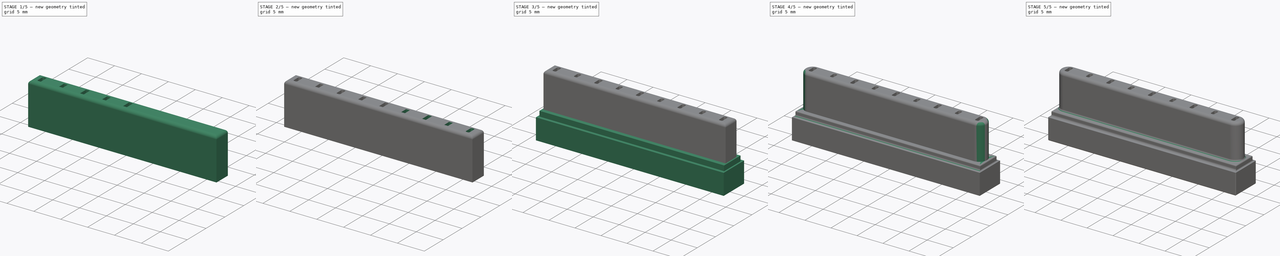
[diagram: build sequence overview — one tinted view per stage of 5, left to right]
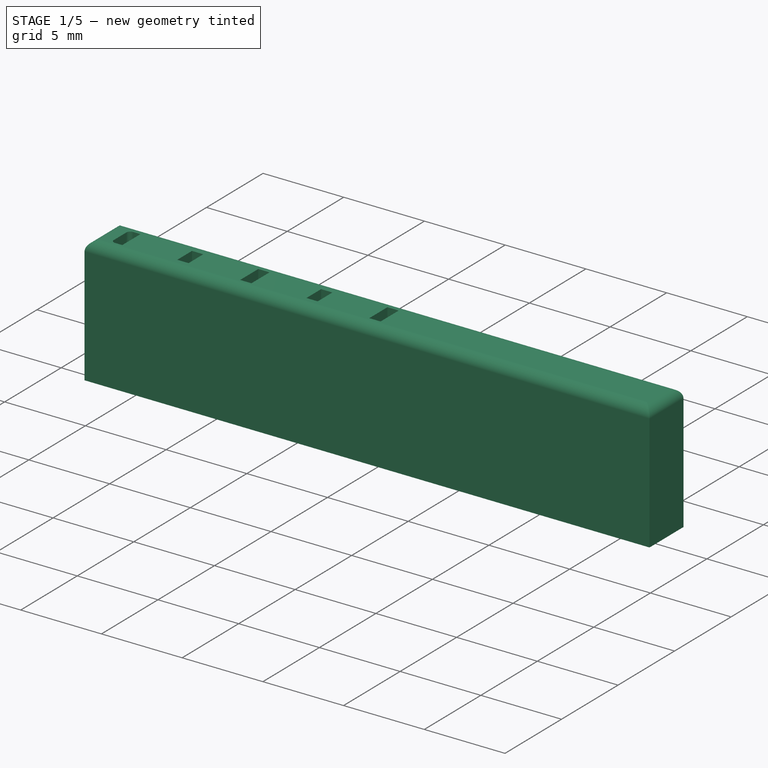
[diagram: stage 1 of 5 — iso view after this stage's code; geometry added in this stage tinted green]
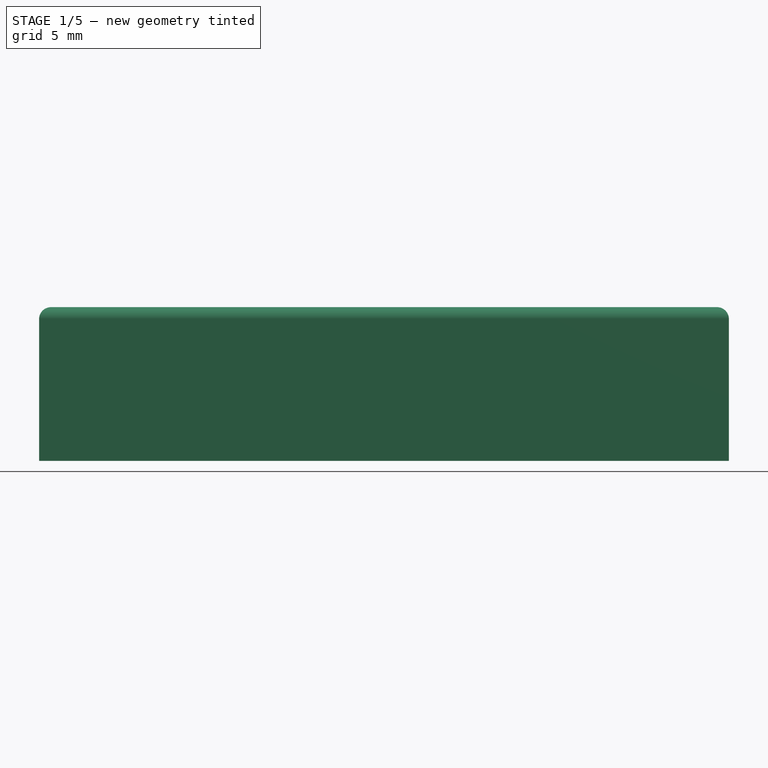
[diagram: stage 1 of 5 — front view after this stage's code; geometry added in this stage tinted green]
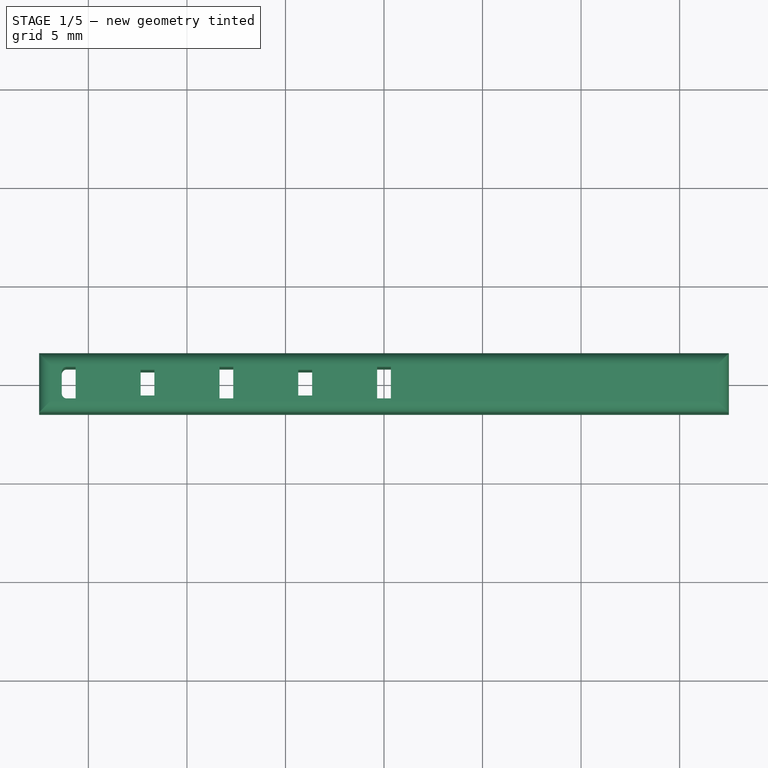
[diagram: stage 1 of 5 — top view after this stage's code; geometry added in this stage tinted green]
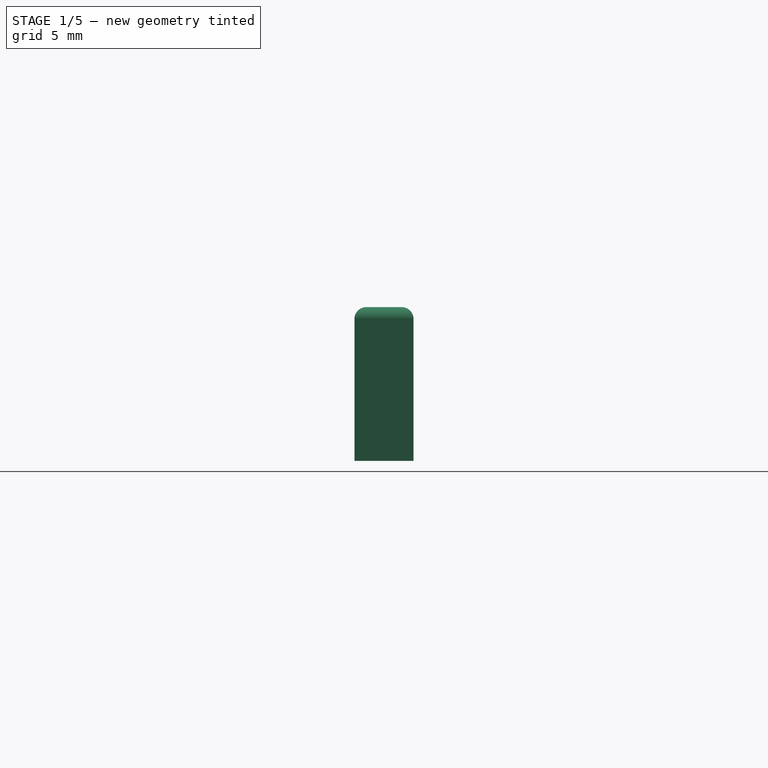
[diagram: stage 1 of 5 — right view after this stage's code; geometry added in this stage tinted green]
FCSTD DOCUMENT  (FreeCAD 0.18R16146 (Git))
Label: Joystick_LED
License: All rights reserved
LicenseURL: http://en.wikipedia.org/wiki/All_rights_reserved
objects: PartDesign::Fillet×9, Sketcher::SketchObject×4, PartDesign::Pad×3, PartDesign::Chamfer×2, PartDesign::Plane×1, PartDesign::Pocket×1, PartDesign::Mirrored×1, PartDesign::Body×1
note: 26 computed .brp shape members not serialized (recipe doc carries the construction recipe); baked Part::Feature solids carry a one-line shape summary decoded from their .brp

FEATURE [Sketcher::SketchObject] Sketch001
  MapMode = 5
  Placement = pos=(0,0,0) rot=(1,0,0;3.14159rad)
  sketch-geometry (8):
    g0: LineSegment StartX=-17.5 StartY=1.5 StartZ=0 EndX=17.5 EndY=1.5 EndZ=0
    g1: LineSegment [constr] StartX=17.5 StartY=1.5 StartZ=0 EndX=17.5 EndY=0 EndZ=0
    g2: LineSegment [constr] StartX=17.5 StartY=0 StartZ=0 EndX=17.5 EndY=-1.5 EndZ=0
    g3: LineSegment StartX=17.5 StartY=-1.5 StartZ=0 EndX=-17.5 EndY=-1.5 EndZ=0
    g4: LineSegment [constr] StartX=-17.5 StartY=-1.5 StartZ=0 EndX=-17.5 EndY=0 EndZ=0
    g5: LineSegment [constr] StartX=-17.5 StartY=0 StartZ=0 EndX=-17.5 EndY=1.5 EndZ=0
    g6: LineSegment StartX=-17.5 StartY=1.5 StartZ=0 EndX=-17.5 EndY=-1.5 EndZ=0
    g7: LineSegment StartX=17.5 StartY=1.5 StartZ=0 EndX=17.5 EndY=-1.5 EndZ=0
  constraints (21):
    c: Horizontal(g0)
    c: Coincident(g0,g1)
    c: Coincident(g1,g2)
    c: Coincident(g2,g3)
    c: Horizontal(g3)
    c: Coincident(g3,g4)
    c: Coincident(g4,g5)
    c: Coincident(g5,g0)
    c: Vertical(g5)
    c: Vertical(g2)
    c: Vertical(g1)
    c: Equal(g2,g1)
    c: Equal(g5,g4)
    c: Symmetric(g0,g2,g-1)
    c: DistanceY(g2,g0) = 3
    c: DistanceX(g0,g0) = 35
    c: Vertical(g4)
    c: Coincident(g6,g0)
    c: Coincident(g6,g3)
    c: Coincident(g7,g0)
    c: Coincident(g7,g3)
FEATURE [PartDesign::Plane] DatumPlane  label="PlatineOK"
  Length = 40.2915
  MapMode = 2
  Placement = pos=(0,0,-10) rot=(0,0,1;0rad)
  ResizeMode = 0
  Width = 25.2915
FEATURE [PartDesign::Pad] Pad  label="Oberteil"
  Length = 6
  Length2 = 1.8
  Placement = pos=(0,0,0) rot=(1,0,0;3.14159rad)
  Profile = -> Sketch001
  Type = 4
FEATURE [PartDesign::Fillet] Fillet
  Base = -> Pad [Edge9,Edge6,Edge3,Edge11]
  BaseFeature = -> Pad
  Placement = pos=(0,0,0) rot=(1,0,0;3.14159rad)
  Radius = 0.6
FEATURE [Sketcher::SketchObject] Sketch
  MapMode = 5
  Placement = pos=(0,-2e-16,1.8) rot=(0,0,1;0rad)
  Support = -> [Fillet]
  sketch-geometry (40):
    g0: LineSegment StartX=-0.35 StartY=0.8 StartZ=0 EndX=0.35 EndY=0.8 EndZ=0
    g1: LineSegment StartX=0.35 StartY=0.8 StartZ=0 EndX=0.35 EndY=-0.8 EndZ=0
    g2: LineSegment StartX=0.35 StartY=-0.8 StartZ=0 EndX=-0.35 EndY=-0.8 EndZ=0
    g3: LineSegment StartX=-0.35 StartY=-0.8 StartZ=0 EndX=-0.35 EndY=0.8 EndZ=0
    g4: LineSegment StartX=-8.35 StartY=0.8 StartZ=0 EndX=-7.65 EndY=0.8 EndZ=0
    g5: LineSegment StartX=-7.65 StartY=0.8 StartZ=0 EndX=-7.65 EndY=-0.8 EndZ=0
    g6: LineSegment StartX=-7.65 StartY=-0.8 StartZ=0 EndX=-8.35 EndY=-0.8 EndZ=0
    g7: LineSegment StartX=-8.35 StartY=-0.8 StartZ=0 EndX=-8.35 EndY=0.8 EndZ=0
    g8: GeomPoint X=-8 Y=0 Z=0
    g9: LineSegment StartX=-12.35 StartY=0.65 StartZ=0 EndX=-11.65 EndY=0.65 EndZ=0
    g10: LineSegment StartX=-11.65 StartY=0.65 StartZ=0 EndX=-11.65 EndY=-0.65 EndZ=0
    g11: LineSegment StartX=-11.65 StartY=-0.65 StartZ=0 EndX=-12.35 EndY=-0.65 EndZ=0
    g12: LineSegment StartX=-12.35 StartY=-0.65 StartZ=0 EndX=-12.35 EndY=0.65 EndZ=0
    g13: LineSegment StartX=-4.35 StartY=0.65 StartZ=0 EndX=-3.65 EndY=0.65 EndZ=0
    g14: LineSegment StartX=-3.65 StartY=0.65 StartZ=0 EndX=-3.65 EndY=-0.65 EndZ=0
    g15: LineSegment StartX=-3.65 StartY=-0.65 StartZ=0 EndX=-4.35 EndY=-0.65 EndZ=0
    g16: GeomPoint X=-12 Y=0 Z=0
    g17: GeomPoint X=-4 Y=0 Z=0
    g18: LineSegment [constr] StartX=-16 StartY=0 StartZ=0 EndX=-12 EndY=0 EndZ=0
    g19: LineSegment [constr] StartX=-12 StartY=0 StartZ=0 EndX=-8 EndY=0 EndZ=0
    g20: LineSegment [constr] StartX=-8 StartY=0 StartZ=0 EndX=-4 EndY=0 EndZ=0
    g21: LineSegment [constr] StartX=-4 StartY=0 StartZ=0 EndX=0 EndY=0 EndZ=0
    g22: LineSegment StartX=-16.1 StartY=0.8 StartZ=0 EndX=-15.65 EndY=0.8 EndZ=0
    g23: LineSegment StartX=-15.65 StartY=0.8 StartZ=0 EndX=-15.65 EndY=-0.8 EndZ=0
    g24: LineSegment StartX=-15.65 StartY=-0.8 StartZ=0 EndX=-16.1 EndY=-0.8 EndZ=0
    g25: LineSegment StartX=-16.35 StartY=0.55 StartZ=0 EndX=-16.35 EndY=-0.55 EndZ=0
    g26: ArcOfCircle CenterX=-16.1 CenterY=0.55 CenterZ=0 NormalX=0 NormalY=0 NormalZ=1 AngleXU=0 Radius=0.25 StartAngle=1.5708 EndAngle=3.14159
    g27: LineSegment [constr] StartX=-16.1 StartY=0.8 StartZ=0 EndX=-16.1 EndY=0.55 EndZ=0
    g28: LineSegment [constr] StartX=-16.1 StartY=0.55 StartZ=0 EndX=-16.35 EndY=0.55 EndZ=0
    g29: LineSegment [constr] StartX=-16.1 StartY=0.8 StartZ=0 EndX=-16.35 EndY=0.8 EndZ=0
    g30: LineSegment [constr] StartX=-16.35 StartY=0.8 StartZ=0 EndX=-16.35 EndY=0.55 EndZ=0
    g31: ArcOfCircle CenterX=-16.1 CenterY=-0.55 CenterZ=0 NormalX=0 NormalY=0 NormalZ=1 AngleXU=0 Radius=0.25 StartAngle=3.14159 EndAngle=4.71239
    g32: LineSegment [constr] StartX=-16.35 StartY=-0.55 StartZ=0 EndX=-16.1 EndY=-0.55 EndZ=0
    g33: LineSegment [constr] StartX=-16.1 StartY=-0.55 StartZ=0 EndX=-16.1 EndY=-0.8 EndZ=0
    g34: LineSegment StartX=-4.35 StartY=0.65 StartZ=0 EndX=-4.35 EndY=-0.65 EndZ=0
    g35: LineSegment [constr] StartX=-16.35 StartY=0 StartZ=0 EndX=-16 EndY=0 EndZ=0
    g36: LineSegment [constr] StartX=-16 StartY=0 StartZ=0 EndX=-15.65 EndY=0 EndZ=0
    g37: LineSegment [constr] StartX=-16.35 StartY=0.55 StartZ=0 EndX=-16.35 EndY=0 EndZ=0
    g38: LineSegment [constr] StartX=-16.35 StartY=0.55 StartZ=0 EndX=-16.35 EndY=0 EndZ=0
    g39: LineSegment [constr] StartX=-16.35 StartY=-0.55 StartZ=0 EndX=-16.35 EndY=0 EndZ=0
  constraints (106):
    c: Coincident(g0,g1)
    c: Coincident(g1,g2)
    c: Coincident(g2,g3)
    c: Coincident(g3,g0)
    c: Horizontal(g0)
    c: Horizontal(g2)
    c: Vertical(g1)
    c: Vertical(g3)
    c: PointOnObject(g18,g-1)
    c: Symmetric(g0,g1,g-1)
    c: DistanceX(g0,g0) = 0.7
    c: DistanceY(g1,g1) = 1.6
    c: Coincident(g4,g5)
    c: Coincident(g5,g6)
    c: Coincident(g6,g7)
    c: Coincident(g7,g4)
    c: Horizontal(g4)
    c: Horizontal(g6)
    c: Vertical(g5)
    c: Vertical(g7)
    c: DistanceX(g18,g-1) = 16
    c: PointOnObject(g8,g-1)
    c: Symmetric(g4,g5,g8)
    c: DistanceY(g5,g5) = 1.6
    c: DistanceX(g4,g4) = 0.7
    c: Coincident(g9,g10)
    c: Coincident(g10,g11)
    c: Coincident(g11,g12)
    c: Coincident(g12,g9)
    c: Horizontal(g9)
    c: Horizontal(g11)
    c: Vertical(g10)
    c: Vertical(g12)
    c: Coincident(g13,g14)
    c: Coincident(g14,g15)
    c: Horizontal(g13)
    c: Horizontal(g15)
    c: Vertical(g14)
    c: PointOnObject(g16,g-1)
    c: PointOnObject(g17,g-1)
    c: Symmetric(g13,g14,g17)
    c: Symmetric(g9,g10,g16)
    c: DistanceX(g9,g9) = 0.7
    c: DistanceY(g10,g10) = 1.3
    c: Equal(g13,g9)
    c: Coincident(g18,g16)
    c: Coincident(g18,g19)
    c: Coincident(g19,g8)
    c: Coincident(g19,g20)
    c: Coincident(g20,g17)
    c: Coincident(g20,g21)
    c: Coincident(g21,g-1)
    c: Equal(g21,g20)
    c: Equal(g19,g18)
    c: Equal(g19,g20)
    c: Horizontal(g22)
    c: Coincident(g22,g23)
    c: Vertical(g23)
    c: Coincident(g23,g24)
    c: Horizontal(g24)
    c: Vertical(g25)
    c: Coincident(g26,g22)
    c: Coincident(g26,g25)
    c: Coincident(g22,g27)
    c: Coincident(g27,g26)
    c: Vertical(g27)
    c: Coincident(g27,g28)
    c: Coincident(g28,g25)
    c: Radius(g26) = 0.25
    c: Horizontal(g28)
    c: Coincident(g22,g29)
    c: Horizontal(g29)
    c: Coincident(g29,g30)
    c: Coincident(g30,g25)
    c: Vertical(g30)
    c: DistanceY(g23,g23) = 1.6
    c: Coincident(g31,g25)
    c: Coincident(g31,g24)
    c: Equal(g31,g26)
    c: Coincident(g32,g25)
    c: Coincident(g32,g31)
    c: Horizontal(g32)
    c: Coincident(g33,g31)
    c: Coincident(g33,g24)
    c: Vertical(g33)
    c: Coincident(g34,g15)
    c: Vertical(g34)
    c: Equal(g14,g10)
    c: Equal(g13,g9)
    c: Coincident(g34,g13)
    c: DistanceX(g25,g22) = 0.7
    c: PointOnObject(g35,g25)
    c: Coincident(g35,g18)
    c: Horizontal(g35)
    c: Coincident(g36,g18)
    c: PointOnObject(g36,g23)
    c: Horizontal(g36)
    c: Equal(g35,g36)
    c: Coincident(g25,g37)
    c: Coincident(g37,g35)
    c: Vertical(g38)
    c: Coincident(g39,g38)
    c: Equal(g38,g39)
    c: Coincident(g38,g25)
    c: Coincident(g39,g25)
    c: PointOnObject(g38,g-1)
FEATURE [PartDesign::Pocket] Pocket  label="LöcherLED"
  BaseFeature = -> Fillet
  Length = 1
  Length2 = 100
  Placement = pos=(0,0,0) rot=(1,0,0;3.14159rad)
  Profile = -> Sketch
  Type = 1
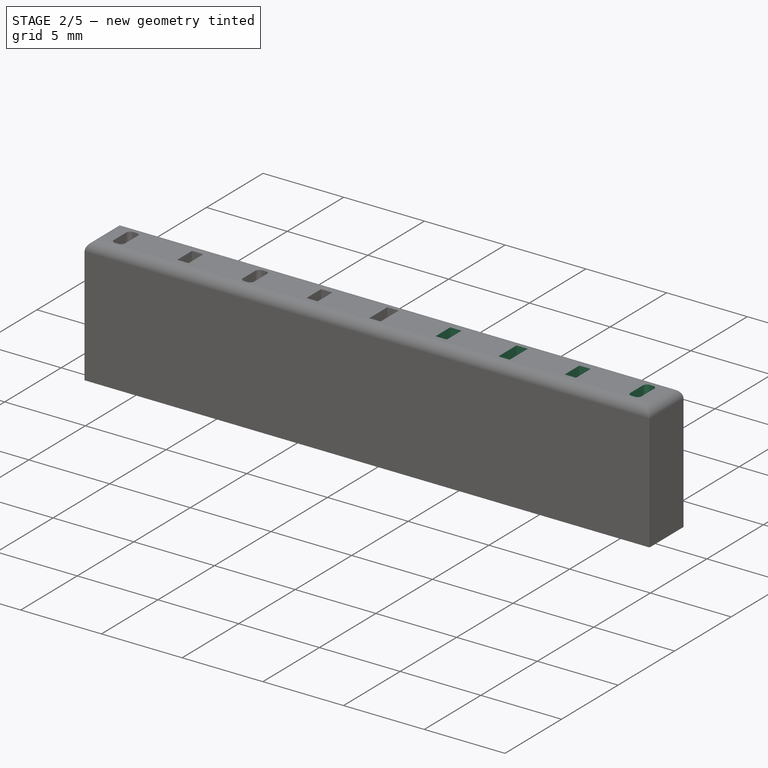
[diagram: stage 2 of 5 — iso view after this stage's code; geometry added in this stage tinted green]
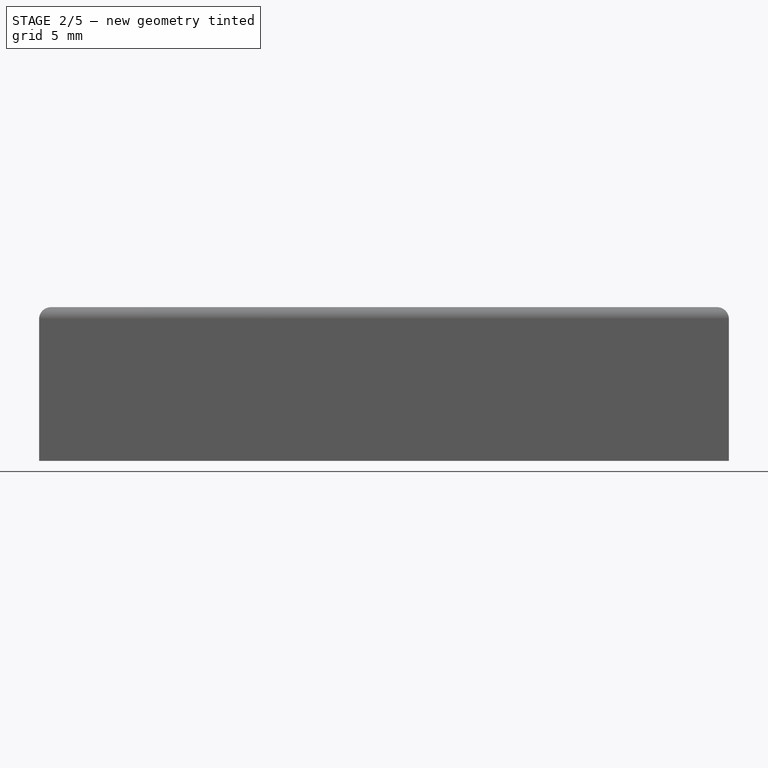
[diagram: stage 2 of 5 — front view after this stage's code; geometry added in this stage tinted green]
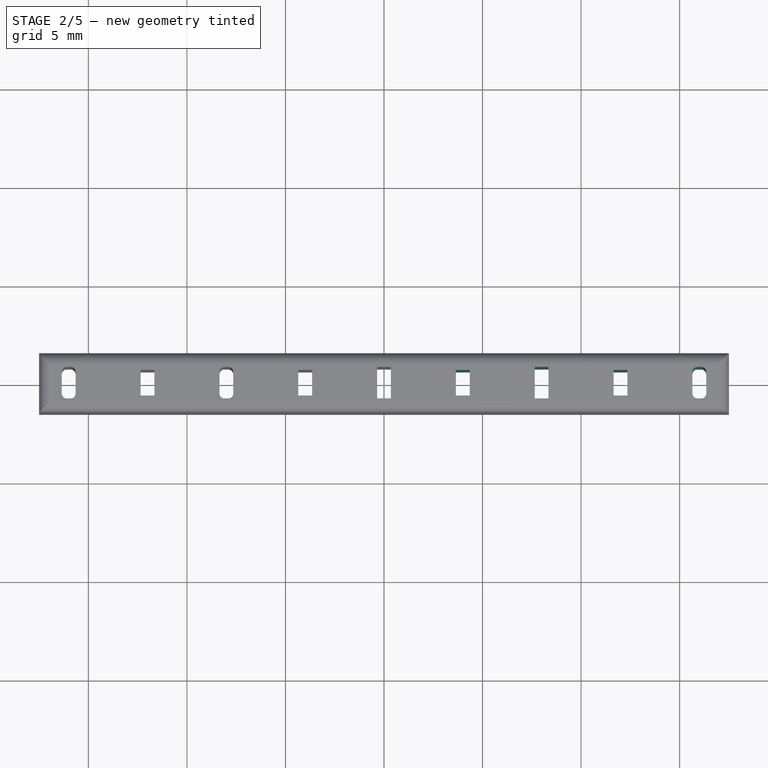
[diagram: stage 2 of 5 — top view after this stage's code; geometry added in this stage tinted green]
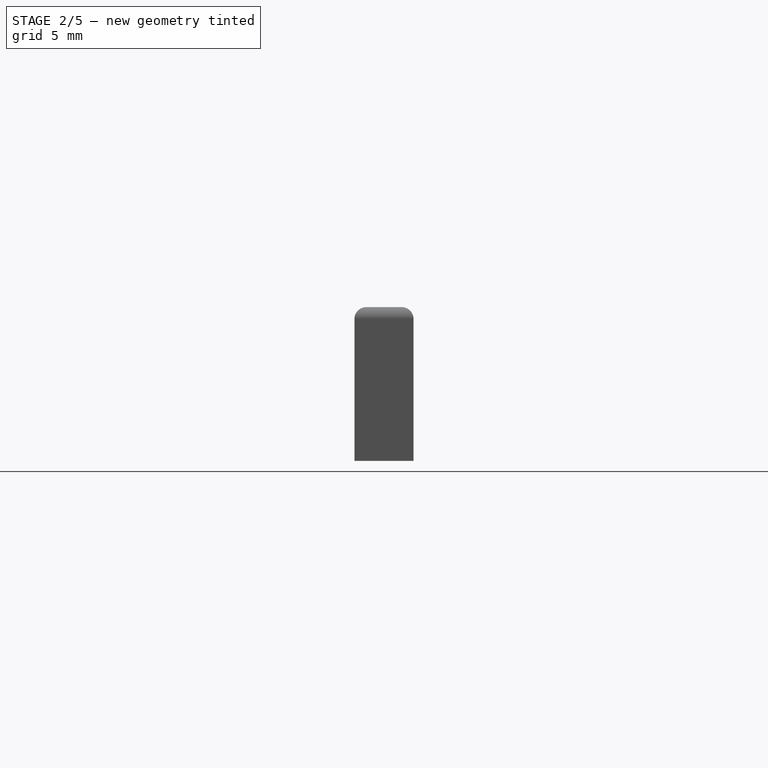
[diagram: stage 2 of 5 — right view after this stage's code; geometry added in this stage tinted green]
FEATURE [PartDesign::Mirrored] Mirrored
  BaseFeature = -> Pocket
  MirrorPlane = -> Sketch [V_Axis]
  Originals = -> [Pocket]
  Placement = pos=(0,0,0) rot=(1,0,0;3.14159rad)
FEATURE [PartDesign::Fillet] Fillet001  label="KanteLEDAußen"
  Base = -> Mirrored [Edge137,Edge139,Edge127,Edge128]
  BaseFeature = -> Mirrored
  Placement = pos=(0,0,0) rot=(1,0,0;3.14159rad)
  Radius = 0.25
FEATURE [PartDesign::Fillet] Fillet002  label="KanteLEDInnen"
  Base = -> Fillet001 [Edge119,Edge114,Edge117,Edge115]
  BaseFeature = -> Fillet001
  Placement = pos=(0,0,0) rot=(1,0,0;3.14159rad)
  Radius = 0.25
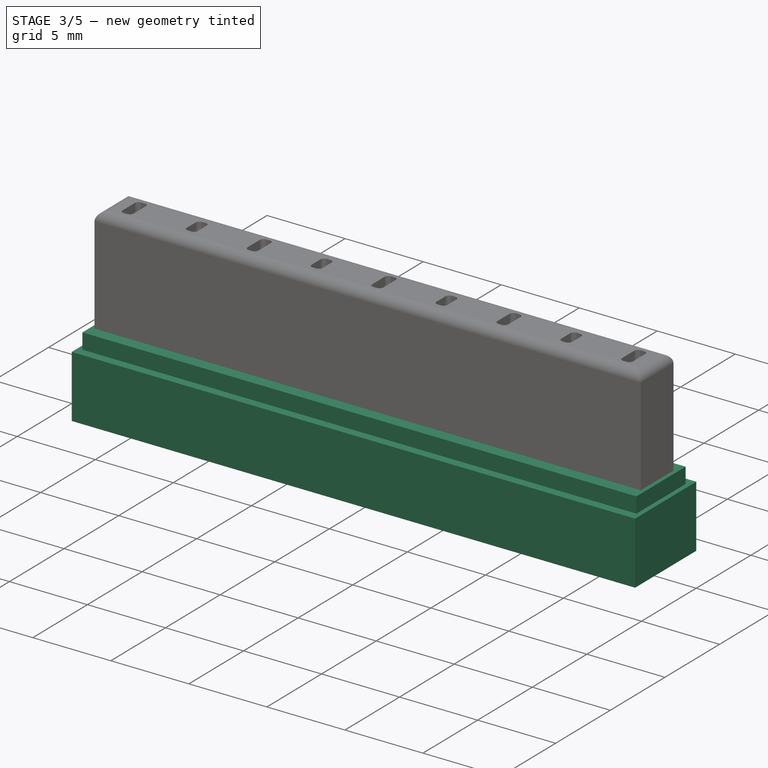
[diagram: stage 3 of 5 — iso view after this stage's code; geometry added in this stage tinted green]
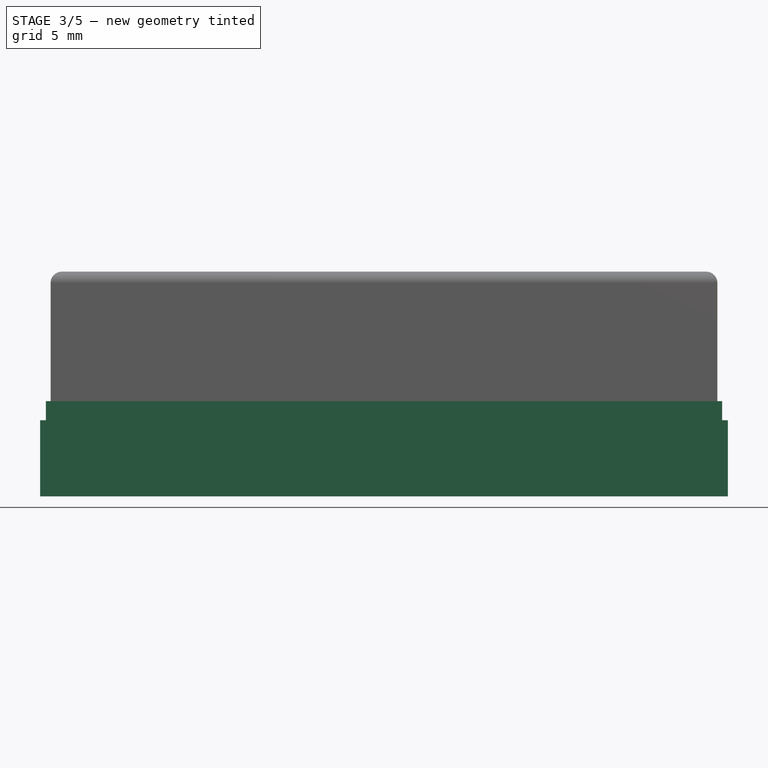
[diagram: stage 3 of 5 — front view after this stage's code; geometry added in this stage tinted green]
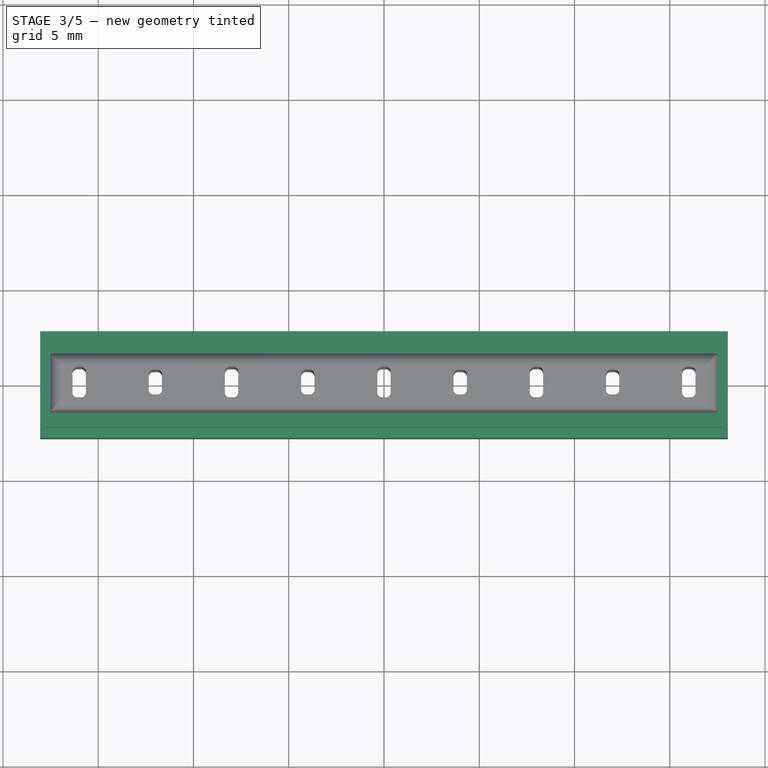
[diagram: stage 3 of 5 — top view after this stage's code; geometry added in this stage tinted green]
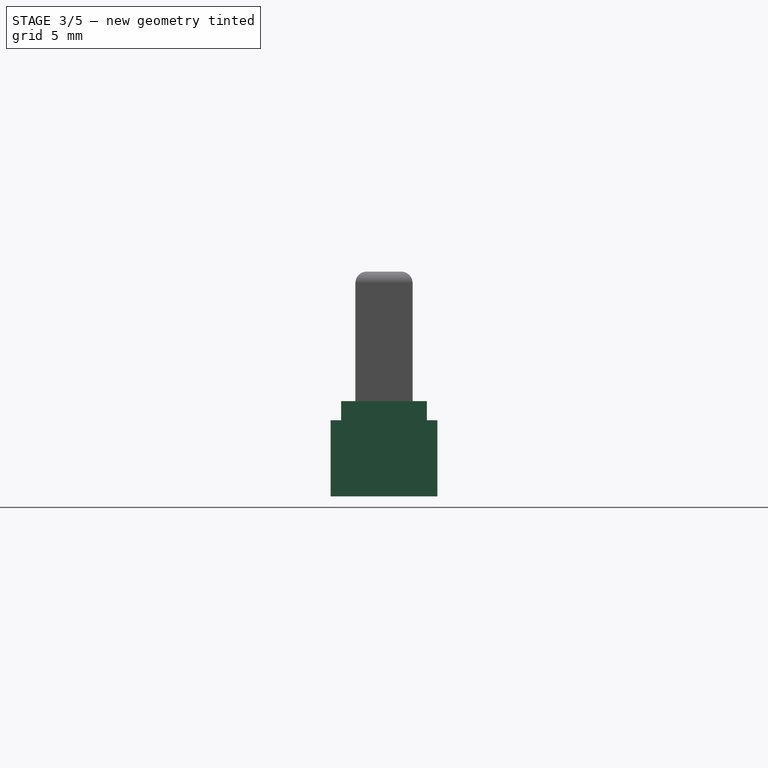
[diagram: stage 3 of 5 — right view after this stage's code; geometry added in this stage tinted green]
FEATURE [PartDesign::Fillet] Fillet003  label="KanteLEDZwischen"
  Base = -> Fillet002 [Edge94,Edge99,Edge95,Edge97,Edge107,Edge102,Edge103,Edge105,Edge135,Edge126,Edge129,Edge131,Edge137,Edge139,Edge134,Edge127,Edge110,Edge119,Edge118,Edge115,Edge113,Edge111,Edge123,Edge121]
  BaseFeature = -> Fillet002
  Placement = pos=(0,0,0) rot=(1,0,0;3.14159rad)
  Radius = 0.25
FEATURE [Sketcher::SketchObject] Sketch002
  MapMode = 5
  Placement = pos=(0,0,-10) rot=(0,0,1;0rad)
  Support = -> [DatumPlane]
  sketch-geometry (10):
    g0: LineSegment StartX=-17.05 StartY=-1.8 StartZ=0 EndX=17.05 EndY=-1.8 EndZ=0
    g1: LineSegment StartX=17.05 StartY=-1.8 StartZ=0 EndX=17.05 EndY=1.8 EndZ=0
    g2: LineSegment StartX=17.05 StartY=1.8 StartZ=0 EndX=-17.05 EndY=1.8 EndZ=0
    g3: LineSegment StartX=-17.05 StartY=1.8 StartZ=0 EndX=-17.05 EndY=-1.8 EndZ=0
    g4: LineSegment StartX=-18.05 StartY=2.8 StartZ=0 EndX=18.05 EndY=2.8 EndZ=0
    g5: LineSegment StartX=18.05 StartY=2.8 StartZ=0 EndX=18.05 EndY=-2.8 EndZ=0
    g6: LineSegment StartX=18.05 StartY=-2.8 StartZ=0 EndX=-18.05 EndY=-2.8 EndZ=0
    g7: LineSegment StartX=-18.05 StartY=-2.8 StartZ=0 EndX=-18.05 EndY=2.8 EndZ=0
    g8: LineSegment [constr] StartX=17.05 StartY=-1.8 StartZ=0 EndX=18.05 EndY=-1.8 EndZ=0
    g9: LineSegment [constr] StartX=17.05 StartY=-1.8 StartZ=0 EndX=17.05 EndY=-2.8 EndZ=0
  constraints (28):
    c: Coincident(g0,g1)
    c: Coincident(g1,g2)
    c: Coincident(g2,g3)
    c: Coincident(g3,g0)
    c: Horizontal(g0)
    c: Horizontal(g2)
    c: Vertical(g1)
    c: Vertical(g3)
    c: DistanceX(g0,g0) = 34.1
    c: DistanceY(g1,g1) = 3.6
    c: Symmetric(g2,g0,g-1)
    c: Coincident(g4,g5)
    c: Coincident(g5,g6)
    c: Coincident(g6,g7)
    c: Coincident(g7,g4)
    c: Horizontal(g4)
    c: Horizontal(g6)
    c: Vertical(g5)
    c: Vertical(g7)
    c: Symmetric(g4,g5,g-1)
    c: PointOnObject(g8,g5)
    c: Horizontal(g8)
    c: Vertical(g9)
    c: Equal(g8,g9)
    c: DistanceX(g8,g8) = 1
    c: Coincident(g8,g0)
    c: Coincident(g9,g0)
    c: PointOnObject(g9,g6)
FEATURE [PartDesign::Pad] Pad001  label="Sockel"
  BaseFeature = -> Fillet003
  Length = 4
  Length2 = 100
  Placement = pos=(0,0,0) rot=(1,0,0;3.14159rad)
  Profile = -> Sketch002
  Type = 0
FEATURE [Sketcher::SketchObject] Sketch003
  ExternalGeometry = -> [Pad001]
  MapMode = 5
  Placement = pos=(0,7e-16,-6) rot=(0,0,1;0rad)
  Support = -> [Pad001]
  sketch-geometry (8):
    g0: LineSegment StartX=-17.75 StartY=2.25 StartZ=0 EndX=17.75 EndY=2.25 EndZ=0
    g1: LineSegment StartX=17.75 StartY=2.25 StartZ=0 EndX=17.75 EndY=-2.25 EndZ=0
    g2: LineSegment StartX=17.75 StartY=-2.25 StartZ=0 EndX=-17.75 EndY=-2.25 EndZ=0
    g3: LineSegment StartX=-17.75 StartY=-2.25 StartZ=0 EndX=-17.75 EndY=2.25 EndZ=0
    g4: ArcOfCircle CenterX=16 CenterY=-2e-16 CenterZ=0 NormalX=0 NormalY=0 NormalZ=1 AngleXU=0 Radius=1.5 StartAngle=4.71239 EndAngle=7.85398
    g5: ArcOfCircle CenterX=-16 CenterY=-2e-16 CenterZ=0 NormalX=0 NormalY=0 NormalZ=1 AngleXU=0 Radius=1.5 StartAngle=1.5708 EndAngle=4.71239
    g6: LineSegment StartX=-16 StartY=1.5 StartZ=0 EndX=16 EndY=1.5 EndZ=0
    g7: LineSegment StartX=16 StartY=-1.5 StartZ=0 EndX=-16 EndY=-1.5 EndZ=0
  constraints (21):
    c: Coincident(g0,g1)
    c: Coincident(g1,g2)
    c: Coincident(g2,g3)
    c: Coincident(g3,g0)
    c: Horizontal(g0)
    c: Horizontal(g2)
    c: Vertical(g1)
    c: Vertical(g3)
    c: Coincident(g4,g-4)
    c: Coincident(g4,g-4)
    c: Coincident(g4,g-4)
    c: Coincident(g5,g-3)
    c: Coincident(g5,g-3)
    c: Coincident(g5,g-3)
    c: Coincident(g6,g5)
    c: Coincident(g6,g4)
    c: Coincident(g7,g4)
    c: Coincident(g7,g5)
    c: Symmetric(g0,g2,g-1)
    c: DistanceX(g0,g0) = 35.5
    c: DistanceY(g1,g1) = 4.5
FEATURE [PartDesign::Pad] Pad002  label="SockelVerbindung"
  BaseFeature = -> Pad001
  Length = 1
  Length2 = 100
  Placement = pos=(0,0,0) rot=(1,0,0;3.14159rad)
  Profile = -> Sketch003
  Type = 0
FEATURE [PartDesign::Fillet] Fillet004
  Base = -> Pad002 [Edge89,Edge6,Edge88,Edge83,Edge82,Edge81,Edge2,Edge87]
  BaseFeature = -> Pad002
  Placement = pos=(0,0,0) rot=(1,0,0;3.14159rad)
  Radius = 0.29
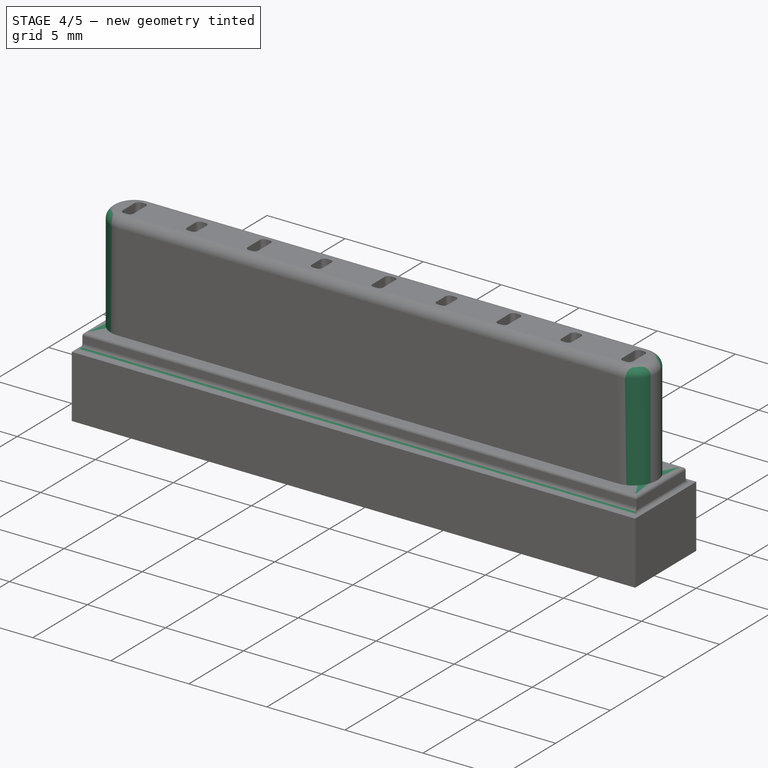
[diagram: stage 4 of 5 — iso view after this stage's code; geometry added in this stage tinted green]
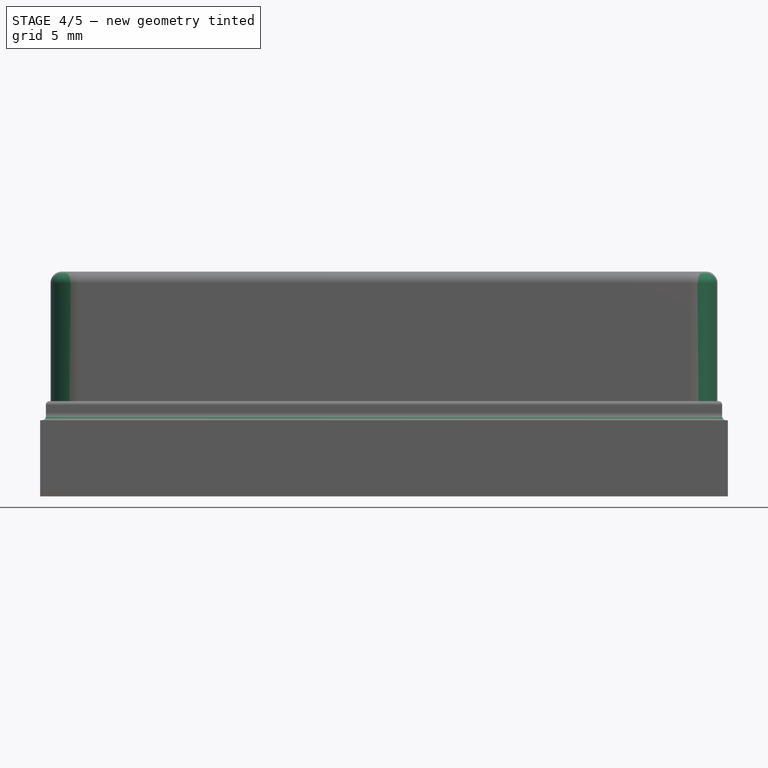
[diagram: stage 4 of 5 — front view after this stage's code; geometry added in this stage tinted green]
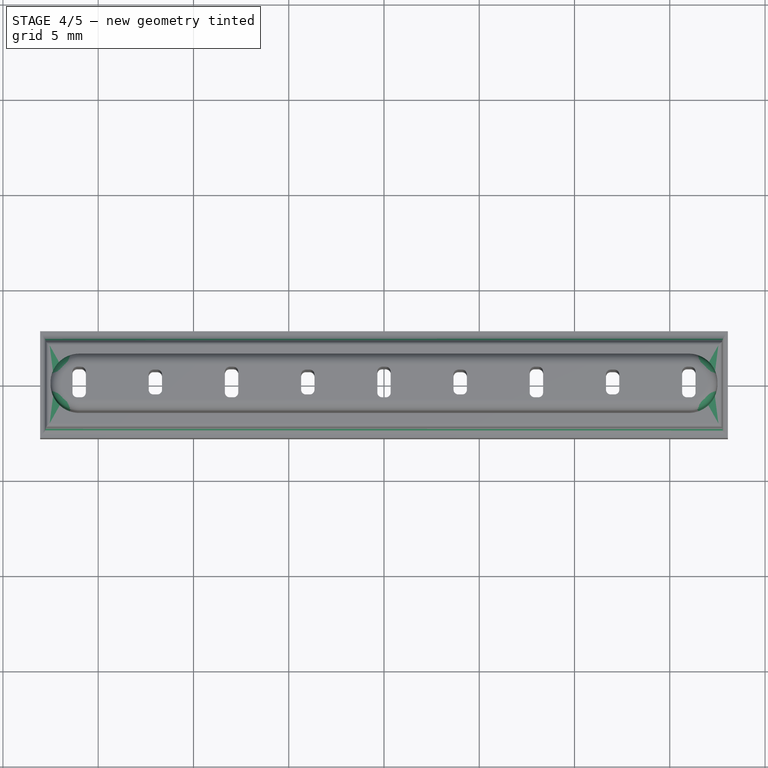
[diagram: stage 4 of 5 — top view after this stage's code; geometry added in this stage tinted green]
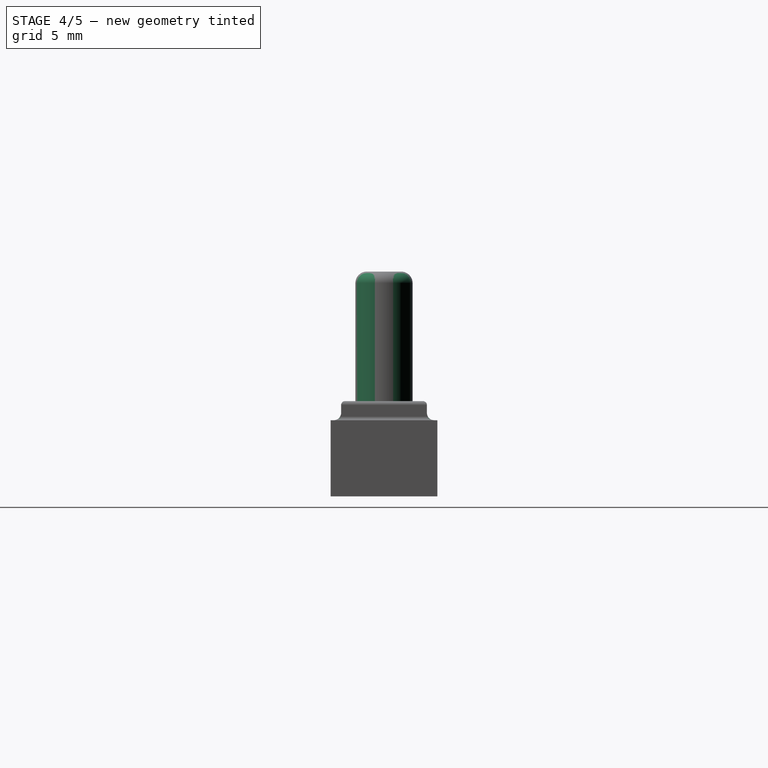
[diagram: stage 4 of 5 — right view after this stage's code; geometry added in this stage tinted green]
FEATURE [PartDesign::Fillet] Fillet005
  Base = -> Fillet004 [Edge290,Edge288]
  BaseFeature = -> Fillet004
  Placement = pos=(0,0,0) rot=(1,0,0;3.14159rad)
  Radius = 0.39
FEATURE [PartDesign::Fillet] Fillet006  label="GehäuseSockelverbindung"
  Base = -> Fillet005 [Edge7,Edge2]
  BaseFeature = -> Fillet005
  Placement = pos=(0,0,0) rot=(1,0,0;3.14159rad)
  Radius = 0.2
FEATURE [PartDesign::Fillet] Fillet007
  Base = -> Fillet006 [Edge48,Edge46,Edge52,Edge50]
  BaseFeature = -> Fillet006
  Placement = pos=(0,0,0) rot=(1,0,0;3.14159rad)
  Radius = 0.2
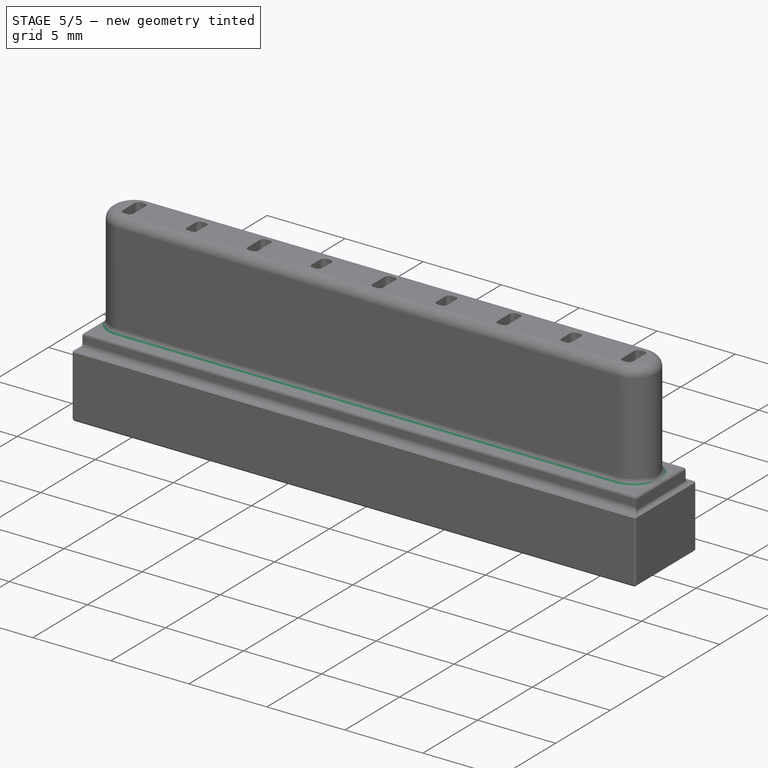
[diagram: stage 5 of 5 — iso view after this stage's code; geometry added in this stage tinted green]
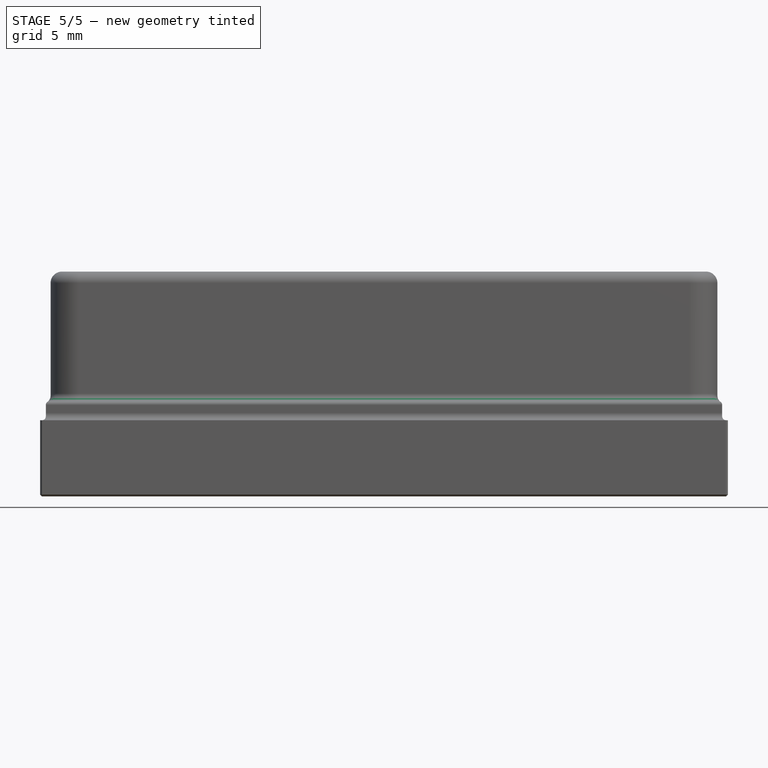
[diagram: stage 5 of 5 — front view after this stage's code; geometry added in this stage tinted green]
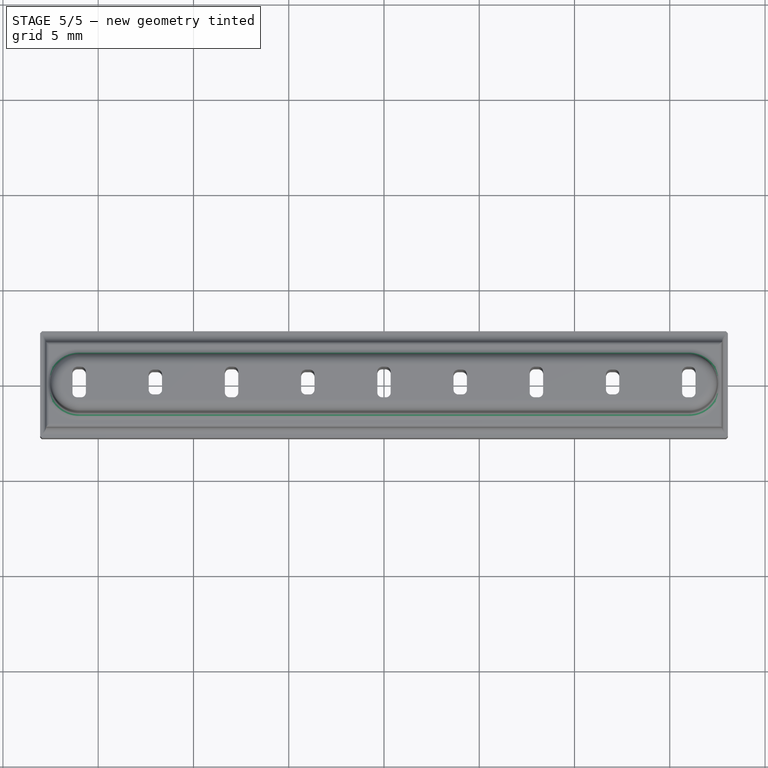
[diagram: stage 5 of 5 — top view after this stage's code; geometry added in this stage tinted green]
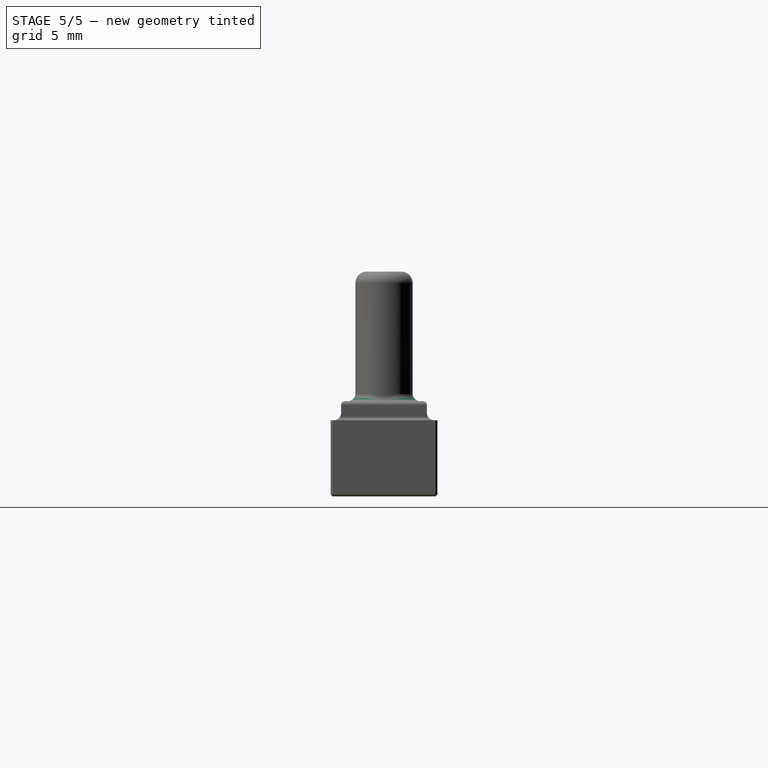
[diagram: stage 5 of 5 — right view after this stage's code; geometry added in this stage tinted green]
FEATURE [PartDesign::Fillet] Fillet008
  Base = -> Fillet007 [Edge46,Edge43,Edge44,Edge45]
  BaseFeature = -> Fillet007
  Placement = pos=(0,0,0) rot=(1,0,0;3.14159rad)
  Radius = 0.4
FEATURE [PartDesign::Chamfer] Chamfer
  Base = -> Fillet008 [Edge321,Edge322,Edge319,Edge320]
  BaseFeature = -> Fillet008
  Placement = pos=(0,0,0) rot=(1,0,0;3.14159rad)
  Size = 0.4
FEATURE [PartDesign::Chamfer] Chamfer001
  Base = -> Chamfer [Edge19,Edge21,Edge7,Edge6,Edge5,Edge8,Edge23,Edge17]
  BaseFeature = -> Chamfer
  Placement = pos=(0,0,0) rot=(1,0,0;3.14159rad)
  Size = 0.1
FEATURE [PartDesign::Body] Body  label="Gehäuse"
  Group = -> [Sketch001,DatumPlane,Pad,Fillet,Sketch,Pocket,Mirrored,Fillet001,Fillet002,Fillet003,Sketch002,Pad001,Sketch003,Pad002,Fillet004,Fillet005,Fillet006,Fillet007,Fillet008,Chamfer,Chamfer001]
  Origin = -> Origin
  Tip = -> Chamfer001
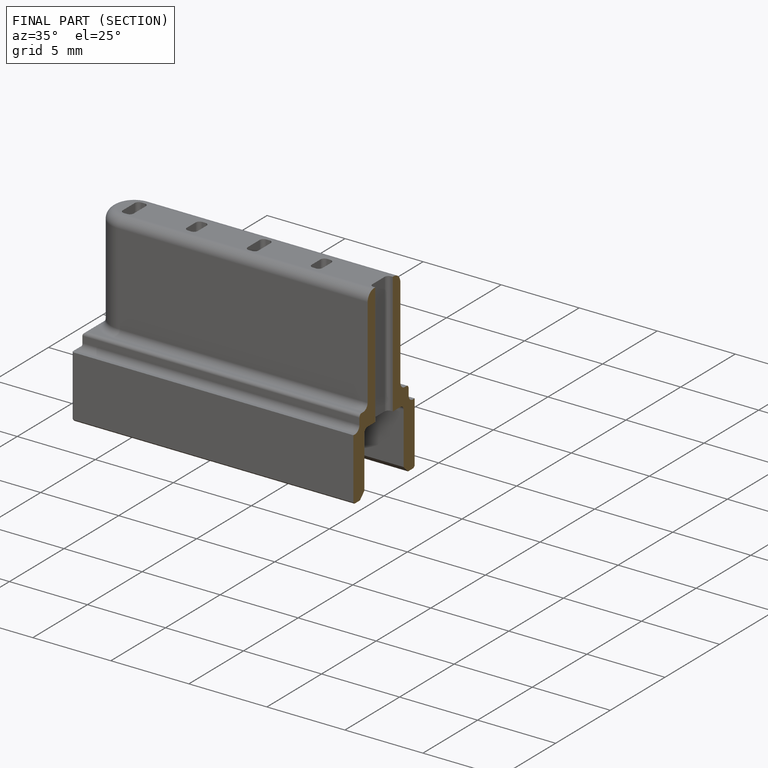
[diagram: finished part — half-section view (interior)]
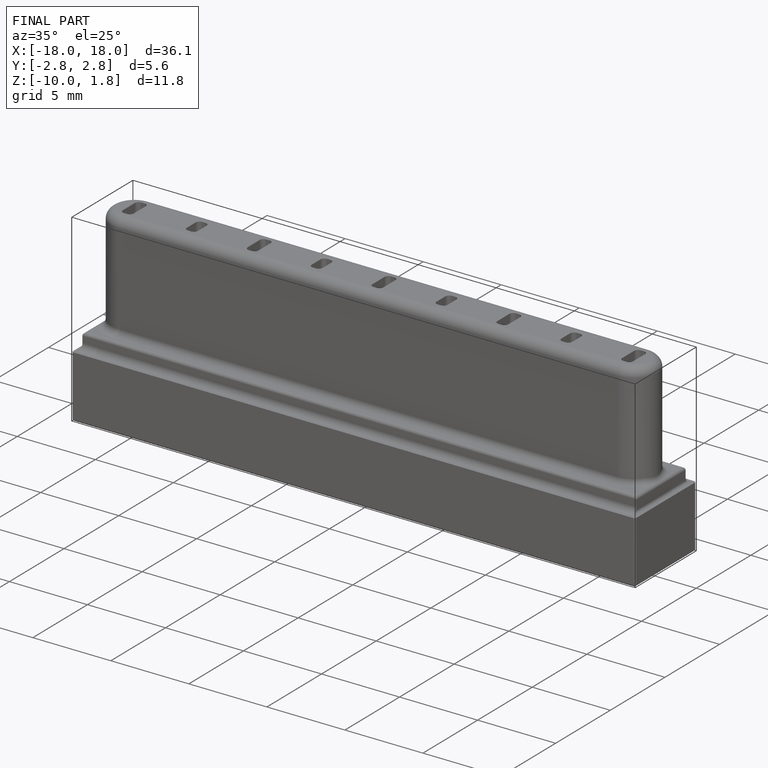
[diagram: finished part — iso view with bounding-box wireframe]
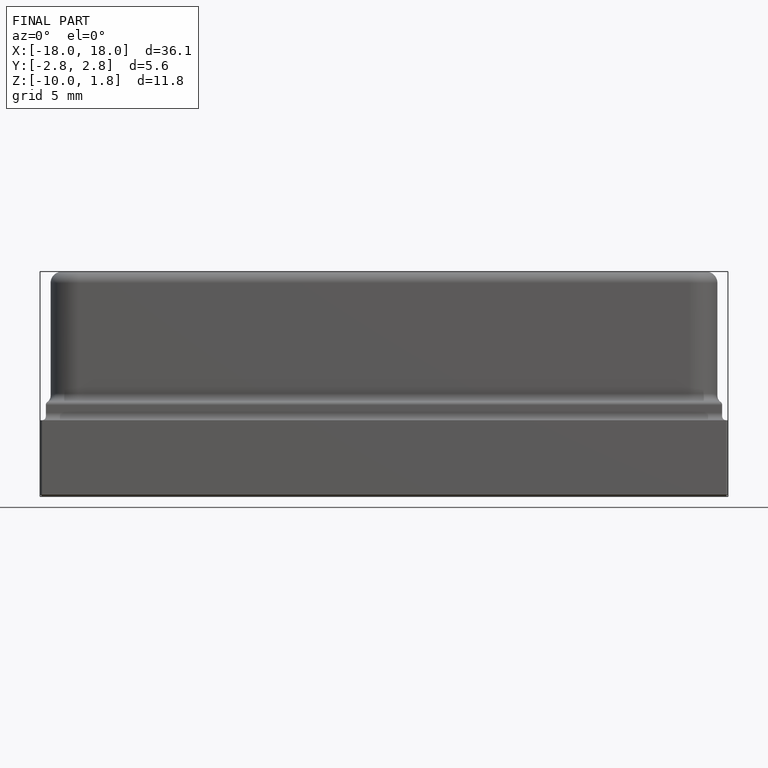
[diagram: finished part — front view with bounding-box wireframe]
